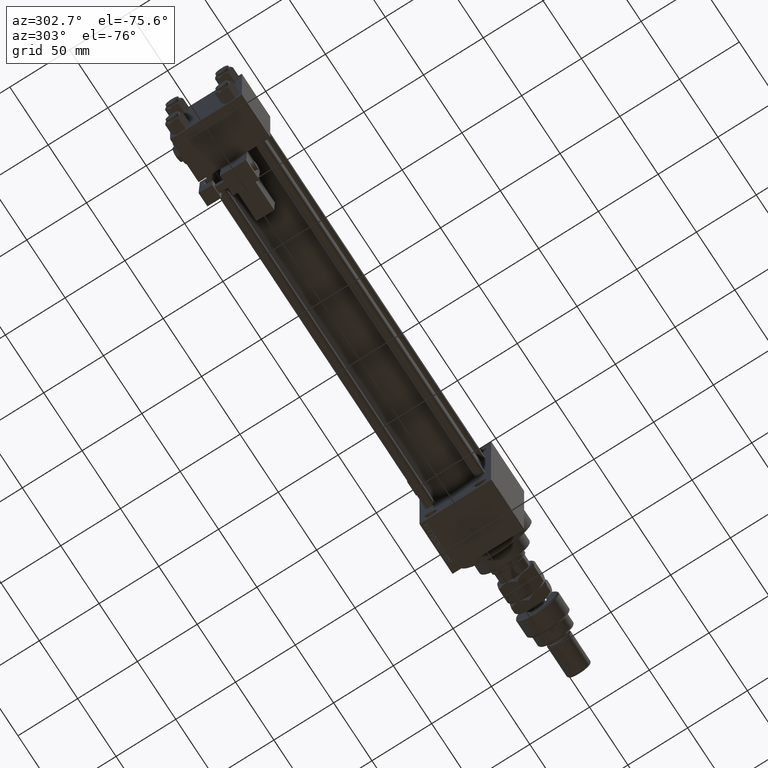
[diagram: clean part render]
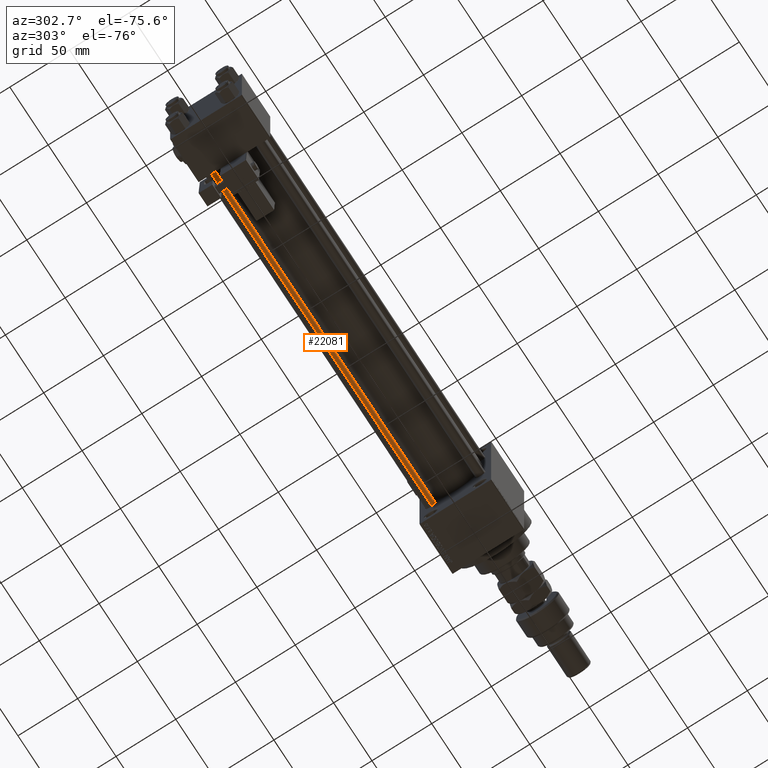
[diagram: same view with one face highlighted and labeled with its STEP entity id]
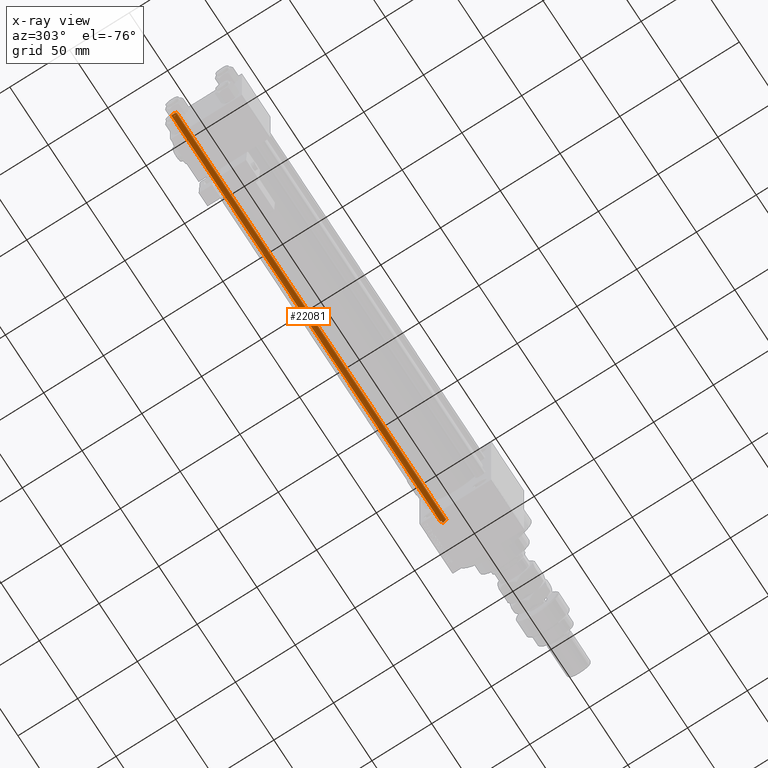
[diagram: x-ray of the same camera — body ghosted, the highlighted face saturated]
A machine part, auxiliary view. The second image highlights one B-rep face of the part: STEP entity #22081.
The next image is the same camera in x-ray: the body ghosted, the highlighted face saturated — about 0% of this face is hidden behind the body in this view.
In plain terms, the highlighted cylindrical surface (edge-blend (fillet) strip) has radius 4 mm, axis along (1, -0, 0).
Its self-contained STEP definition (entity closure, byte-faithful):
#742 = CARTESIAN_POINT ( 'NONE',  ( 4.000000000000000000, 4.898587196589412829E-16, 351.5000000000000000 ) ) ;
#1069 = VECTOR ( 'NONE', #6371, 1000.000000000000000 ) ;
#1849 = DIRECTION ( 'NONE',  ( -1.000000000000000000, 0.000000000000000000, 0.000000000000000000 ) ) ;
#2105 = VECTOR ( 'NONE', #44912, 1000.000000000000000 ) ;
#3969 = CARTESIAN_POINT ( 'NONE',  ( -4.000000000000000000, 0.000000000000000000, 352.0000000000000000 ) ) ;
#5046 = ORIENTED_EDGE ( 'NONE', *, *, #24593, .T. ) ;
#5558 = CARTESIAN_POINT ( 'NONE',  ( 4.000000000000000000, 4.898587196589412829E-16, 352.0000000000000000 ) ) ;
#6371 = DIRECTION ( 'NONE',  ( -0.000000000000000000, -0.000000000000000000, -1.000000000000000000 ) ) ;
#7918 = EDGE_LOOP ( 'NONE', ( #44085, #30511, #31171, #5046 ) ) ;
#10555 = DIRECTION ( 'NONE',  ( 1.000000000000000000, 0.000000000000000000, 0.000000000000000000 ) ) ;
#10926 = VERTEX_POINT ( 'NONE', #15848 ) ;
#13259 = CARTESIAN_POINT ( 'NONE',  ( 4.000000000000000000, 4.898587196589412829E-16, 0.5000000000000004441 ) ) ;
#13276 = AXIS2_PLACEMENT_3D ( 'NONE', #24969, #20582, #20845 ) ;
#14062 = CARTESIAN_POINT ( 'NONE',  ( -4.000000000000000000, 0.000000000000000000, 0.5000000000000004441 ) ) ;
#15554 = EDGE_CURVE ( 'NONE', #26617, #10926, #20052, .T. ) ;
#15848 = CARTESIAN_POINT ( 'NONE',  ( -4.000000000000000000, 0.000000000000000000, 351.5000000000000000 ) ) ;
#19048 = CARTESIAN_POINT ( 'NONE',  ( 0.000000000000000000, 0.000000000000000000, 351.5000000000000000 ) ) ;
#19708 = CYLINDRICAL_SURFACE ( 'NONE', #21903, 4.000000000000000000 ) ;
#20052 = CIRCLE ( 'NONE', #41973, 4.000000000000000000 ) ;
#20582 = DIRECTION ( 'NONE',  ( -0.000000000000000000, -0.000000000000000000, 1.000000000000000000 ) ) ;
#20845 = DIRECTION ( 'NONE',  ( 1.000000000000000000, 0.000000000000000000, 0.000000000000000000 ) ) ;
#21903 = AXIS2_PLACEMENT_3D ( 'NONE', #31518, #26855, #1849 ) ;
#22081 = ADVANCED_FACE ( 'NONE', ( #31247 ), #19708, .T. ) ;
#22306 = LINE ( 'NONE', #5558, #1069 ) ;
#24593 = EDGE_CURVE ( 'NONE', #43663, #37617, #50069, .T. ) ;
#24969 = CARTESIAN_POINT ( 'NONE',  ( 0.000000000000000000, 0.000000000000000000, 0.5000000000000004441 ) ) ;
#26617 = VERTEX_POINT ( 'NONE', #742 ) ;
#26855 = DIRECTION ( 'NONE',  ( -0.000000000000000000, -0.000000000000000000, -1.000000000000000000 ) ) ;
#27299 = EDGE_CURVE ( 'NONE', #26617, #37617, #22306, .T. ) ;
#30511 = ORIENTED_EDGE ( 'NONE', *, *, #15554, .T. ) ;
#31171 = ORIENTED_EDGE ( 'NONE', *, *, #36314, .T. ) ;
#31247 = FACE_OUTER_BOUND ( 'NONE', #7918, .T. ) ;
#31518 = CARTESIAN_POINT ( 'NONE',  ( 0.000000000000000000, 0.000000000000000000, 352.0000000000000000 ) ) ;
#35806 = DIRECTION ( 'NONE',  ( 0.000000000000000000, 0.000000000000000000, -1.000000000000000000 ) ) ;
#36314 = EDGE_CURVE ( 'NONE', #10926, #43663, #53985, .T. ) ;
#37617 = VERTEX_POINT ( 'NONE', #13259 ) ;
#41973 = AXIS2_PLACEMENT_3D ( 'NONE', #19048, #35806, #10555 ) ;
#43663 = VERTEX_POINT ( 'NONE', #14062 ) ;
#44085 = ORIENTED_EDGE ( 'NONE', *, *, #27299, .F. ) ;
#44912 = DIRECTION ( 'NONE',  ( -0.000000000000000000, -0.000000000000000000, -1.000000000000000000 ) ) ;
#50069 = CIRCLE ( 'NONE', #13276, 4.000000000000000000 ) ;
#53985 = LINE ( 'NONE', #3969, #2105 ) ;